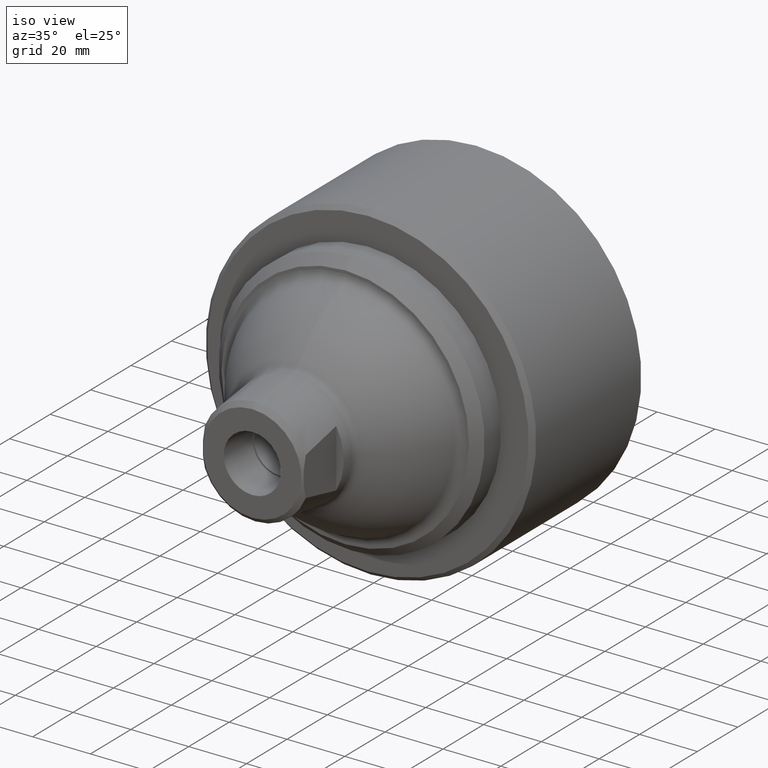
[diagram: clean part render]
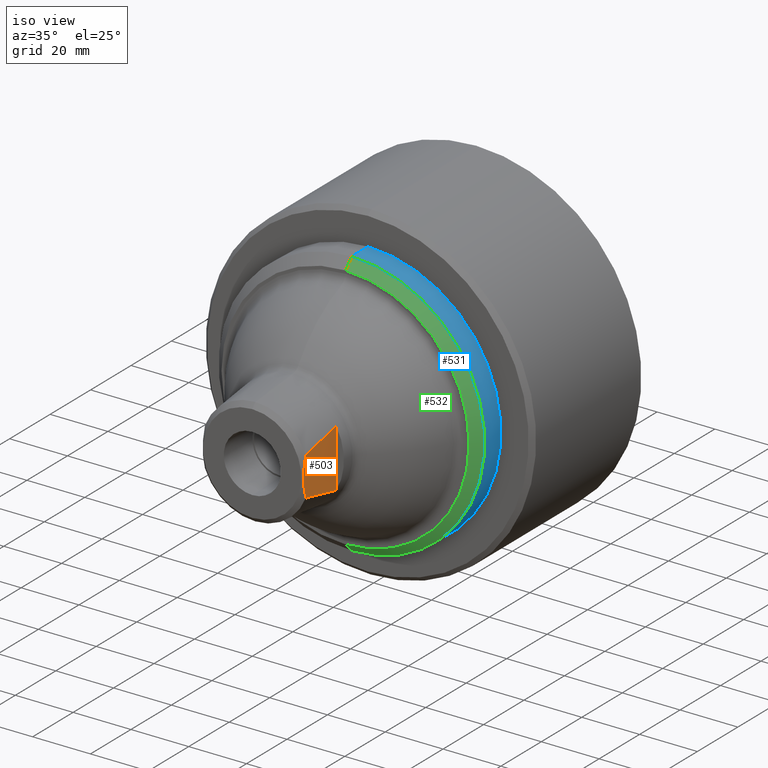
[diagram: same view with three faces highlighted in distinct colors, each labeled with its STEP entity id]
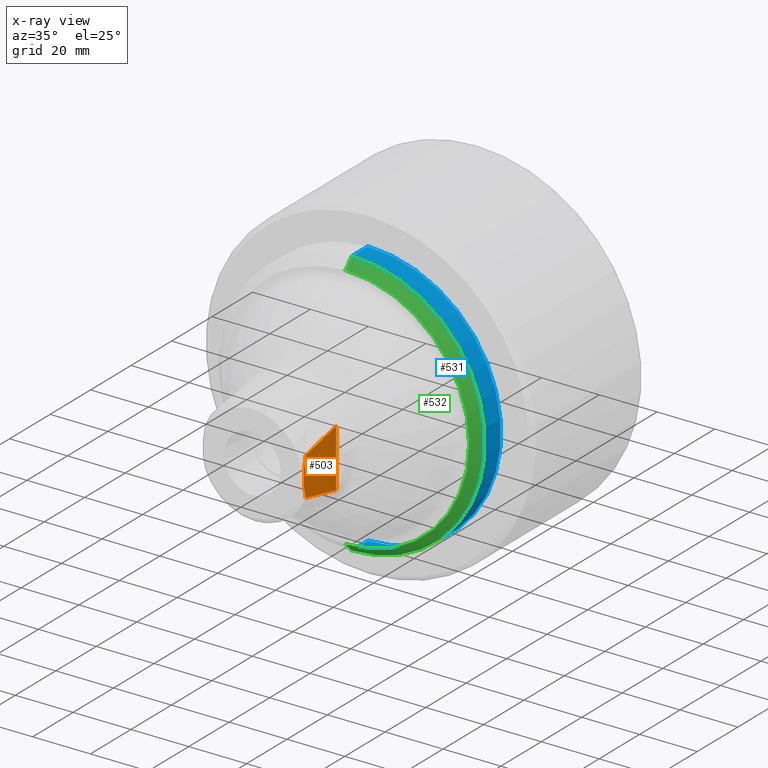
[diagram: x-ray of the same camera — body ghosted, the three highlighted faces saturated]
A machine part, iso view with three faces highlighted in distinct colors.
The next image is the same camera in x-ray (body ghosted, the three faces saturated) — at least one of them is partly hidden behind the body in this view.
Their STEP definitions:

[orange] entity #503 — the highlighted planar face has unit normal (-1, -0, 0).
#231 = VECTOR ( 'NONE', #1791, 39.37007874015748100 ) ;
#449 = EDGE_CURVE ( 'NONE', #2535, #2530, #639, .T. ) ;
#503 = ADVANCED_FACE ( 'NONE', ( #2786 ), #1165, .F. ) ;
#610 = EDGE_CURVE ( 'NONE', #2530, #2533, #1363, .T. ) ;
#639 = B_SPLINE_CURVE_WITH_KNOTS ( 'NONE', 3,
 ( #1023, #1024, #1025, #1026, #1027, #1028 ),
 .UNSPECIFIED., .F., .F.,
 ( 4, 2, 4 ),
 ( 0.01596719644333322000, 0.02367008420088245700, 0.03137297195843169500 ),
 .UNSPECIFIED. ) ;
#724 = AXIS2_PLACEMENT_3D ( 'NONE', #1166, #1167, #1168 ) ;
#833 = EDGE_CURVE ( 'NONE', #2533, #2534, #1369, .T. ) ;
#905 = EDGE_CURVE ( 'NONE', #2534, #2535, #2916, .T. ) ;
#1023 = CARTESIAN_POINT ( 'NONE',  ( 0.6864499999999996700, 0.6520000000000000200, -0.3953677445666993200 ) ) ;
#1024 = CARTESIAN_POINT ( 'NONE',  ( 0.6864499999999995600, 0.5526648028807844600, -0.3763904493901231700 ) ) ;
#1025 = CARTESIAN_POINT ( 'NONE',  ( 0.6864499999999996700, 0.4535402785546300800, -0.3564632163868127800 ) ) ;
#1026 = CARTESIAN_POINT ( 'NONE',  ( 0.6864499999999994500, 0.2559782258720469400, -0.3135110392378371300 ) ) ;
#1027 = CARTESIAN_POINT ( 'NONE',  ( 0.6864499999999996700, 0.1575240353912196200, -0.2905612257343885800 ) ) ;
#1028 = CARTESIAN_POINT ( 'NONE',  ( 0.6864499999999996700, 0.05972910370428787700, -0.2646387698843459800 ) ) ;
#1165 = PLANE ( 'NONE',  #724 ) ;
#1166 = CARTESIAN_POINT ( 'NONE',  ( 0.6864500000000000000, 0.6520000000000000200, 0.4233021562792531600 ) ) ;
#1167 = DIRECTION ( 'NONE',  ( -1.000000000000000000, -0.0000000000000000000, 3.226829763491753000E-016 ) ) ;
#1168 = DIRECTION ( 'NONE',  ( 3.226829763491753000E-016, 0.0000000000000000000, 1.000000000000000000 ) ) ;
#1363 = B_SPLINE_CURVE_WITH_KNOTS ( 'NONE', 3,
 ( #1412, #1413, #1414, #1415, #1416, #1417, #1418, #1419, #1420, #1421 ),
 .UNSPECIFIED., .F., .F.,
 ( 4, 2, 2, 2, 4 ),
 ( 0.01773498663486794800, 0.02453790508743007600, 0.02623863470057060500, 0.02793936431371113800, 0.03134082353999220100 ),
 .UNSPECIFIED. ) ;
#1369 = B_SPLINE_CURVE_WITH_KNOTS ( 'NONE', 3,
 ( #1509, #1510, #1511, #1512, #1513, #1514 ),
 .UNSPECIFIED., .F., .F.,
 ( 4, 2, 4 ),
 ( 0.06147963865417935300, 0.06903875133002547500, 0.07659786400587159600 ),
 .UNSPECIFIED. ) ;
#1412 = CARTESIAN_POINT ( 'NONE',  ( 0.6864499999999996700, 0.05972910370428787700, -0.2646387698843459800 ) ) ;
#1413 = CARTESIAN_POINT ( 'NONE',  ( 0.6864499999999995600, 0.03171308166574994500, -0.1789748685673014600 ) ) ;
#1414 = CARTESIAN_POINT ( 'NONE',  ( 0.6864499999999998900, 0.01500099595552363400, -0.09121716334354730600 ) ) ;
#1415 = CARTESIAN_POINT ( 'NONE',  ( 0.6864499999999998900, 0.01494501470791759600, 0.02233902868637757000 ) ) ;
#1416 = CARTESIAN_POINT ( 'NONE',  ( 0.6864499999999998900, 0.01596859907033181700, 0.04503499646751075300 ) ) ;
#1417 = CARTESIAN_POINT ( 'NONE',  ( 0.6864499999999998900, 0.01995650618603224700, 0.08988338458374767200 ) ) ;
#1418 = CARTESIAN_POINT ( 'NONE',  ( 0.6864499999999998900, 0.02291957046888484800, 0.1121188836507903100 ) ) ;
#1419 = CARTESIAN_POINT ( 'NONE',  ( 0.6864500000000000000, 0.03446432333352256200, 0.1783083182907398400 ) ) ;
#1420 = CARTESIAN_POINT ( 'NONE',  ( 0.6864500000000000000, 0.04570097550896756700, 0.2217453074315339500 ) ) ;
#1421 = CARTESIAN_POINT ( 'NONE',  ( 0.6864500000000000000, 0.05972910370429283800, 0.2646387698843346000 ) ) ;
#1509 = CARTESIAN_POINT ( 'NONE',  ( 0.6864500000000000000, 0.05972910370429283800, 0.2646387698843346000 ) ) ;
#1510 = CARTESIAN_POINT ( 'NONE',  ( 0.6864500000000000000, 0.1573351616461625400, 0.2905111610609637000 ) ) ;
#1511 = CARTESIAN_POINT ( 'NONE',  ( 0.6864500000000001200, 0.2558064863425546500, 0.3134726585834529100 ) ) ;
#1512 = CARTESIAN_POINT ( 'NONE',  ( 0.6864499999999998900, 0.4535270439805836300, 0.3564613806486499600 ) ) ;
#1513 = CARTESIAN_POINT ( 'NONE',  ( 0.6864499999999998900, 0.5526754392431595400, 0.3763924813928189500 ) ) ;
#1514 = CARTESIAN_POINT ( 'NONE',  ( 0.6864500000000000000, 0.6520000000000000200, 0.3953677445666989300 ) ) ;
#1790 = CARTESIAN_POINT ( 'NONE',  ( 0.6864500000000000000, 0.6520000000000000200, 0.4233021562792531600 ) ) ;
#1791 = DIRECTION ( 'NONE',  ( -3.226829763491753000E-016, 0.0000000000000000000, -1.000000000000000000 ) ) ;
#2126 = CARTESIAN_POINT ( 'NONE',  ( 0.6864499999999996700, 0.05972910370428787700, -0.2646387698843459800 ) ) ;
#2129 = CARTESIAN_POINT ( 'NONE',  ( 0.6864500000000000000, 0.05972910370429283800, 0.2646387698843346000 ) ) ;
#2130 = CARTESIAN_POINT ( 'NONE',  ( 0.6864500000000000000, 0.6520000000000000200, 0.3953677445666989300 ) ) ;
#2131 = CARTESIAN_POINT ( 'NONE',  ( 0.6864499999999996700, 0.6520000000000000200, -0.3953677445666993200 ) ) ;
#2404 = ORIENTED_EDGE ( 'NONE', *, *, #905, .F. ) ;
#2407 = ORIENTED_EDGE ( 'NONE', *, *, #449, .F. ) ;
#2408 = ORIENTED_EDGE ( 'NONE', *, *, #833, .F. ) ;
#2409 = ORIENTED_EDGE ( 'NONE', *, *, #610, .F. ) ;
#2530 = VERTEX_POINT ( 'NONE', #2126 ) ;
#2533 = VERTEX_POINT ( 'NONE', #2129 ) ;
#2534 = VERTEX_POINT ( 'NONE', #2130 ) ;
#2535 = VERTEX_POINT ( 'NONE', #2131 ) ;
#2603 = EDGE_LOOP ( 'NONE', ( #2404, #2408, #2409, #2407 ) ) ;
#2786 = FACE_OUTER_BOUND ( 'NONE', #2603, .T. ) ;
#2916 = LINE ( 'NONE', #1790, #231 ) ;

[blue] entity #531 — the highlighted cylindrical surface (partial cylindrical patch) has radius 46.0248 mm, axis along (0, 1, 0).
#505 = EDGE_CURVE ( 'NONE', #2516, #2519, #2790, .T. ) ;
#506 = EDGE_CURVE ( 'NONE', #2519, #2518, #770, .T. ) ;
#507 = EDGE_CURVE ( 'NONE', #2516, #2517, #758, .T. ) ;
#531 = ADVANCED_FACE ( 'NONE', ( #2807 ), #2810, .T. ) ;
#620 = EDGE_CURVE ( 'NONE', #2517, #2518, #2838, .T. ) ;
#757 = AXIS2_PLACEMENT_3D ( 'NONE', #1177, #1178, #1179 ) ;
#758 = CIRCLE ( 'NONE', #757, 1.812000000000000900 ) ;
#761 = AXIS2_PLACEMENT_3D ( 'NONE', #1257, #1258, #1259 ) ;
#765 = VECTOR ( 'NONE', #1173, 39.37007874015748100 ) ;
#766 = AXIS2_PLACEMENT_3D ( 'NONE', #1174, #1175, #1176 ) ;
#770 = CIRCLE ( 'NONE', #766, 1.812000000000000900 ) ;
#1172 = CARTESIAN_POINT ( 'NONE',  ( 3.552713678800500900E-015, 5.125000000000000000, 1.812000000000000900 ) ) ;
#1173 = DIRECTION ( 'NONE',  ( 0.0000000000000000000, 1.000000000000000000, 0.0000000000000000000 ) ) ;
#1174 = CARTESIAN_POINT ( 'NONE',  ( 3.552713678800500900E-015, 2.250000000000000400, 0.0000000000000000000 ) ) ;
#1175 = DIRECTION ( 'NONE',  ( 0.0000000000000000000, 1.000000000000000000, 0.0000000000000000000 ) ) ;
#1176 = DIRECTION ( 'NONE',  ( 0.0000000000000000000, 0.0000000000000000000, 1.000000000000000000 ) ) ;
#1177 = CARTESIAN_POINT ( 'NONE',  ( 3.552713678800500900E-015, 1.935000000000000500, 0.0000000000000000000 ) ) ;
#1178 = DIRECTION ( 'NONE',  ( 0.0000000000000000000, 1.000000000000000000, 0.0000000000000000000 ) ) ;
#1179 = DIRECTION ( 'NONE',  ( 0.0000000000000000000, 0.0000000000000000000, 1.000000000000000000 ) ) ;
#1257 = CARTESIAN_POINT ( 'NONE',  ( 3.552713678800500900E-015, 5.125000000000000000, 0.0000000000000000000 ) ) ;
#1258 = DIRECTION ( 'NONE',  ( 0.0000000000000000000, 1.000000000000000000, 0.0000000000000000000 ) ) ;
#1259 = DIRECTION ( 'NONE',  ( 0.0000000000000000000, 0.0000000000000000000, 1.000000000000000000 ) ) ;
#1481 = CARTESIAN_POINT ( 'NONE',  ( 3.774619678806001300E-015, 5.125000000000000000, -1.812000000000000900 ) ) ;
#1482 = DIRECTION ( 'NONE',  ( 0.0000000000000000000, 1.000000000000000000, 0.0000000000000000000 ) ) ;
#2112 = CARTESIAN_POINT ( 'NONE',  ( 3.552713678800500900E-015, 1.935000000000000500, 1.812000000000000900 ) ) ;
#2113 = CARTESIAN_POINT ( 'NONE',  ( 3.774619678806002100E-015, 1.935000000000000500, -1.812000000000000900 ) ) ;
#2114 = CARTESIAN_POINT ( 'NONE',  ( 3.774619678806001300E-015, 2.250000000000000400, -1.812000000000000900 ) ) ;
#2115 = CARTESIAN_POINT ( 'NONE',  ( 3.552713678800500900E-015, 2.250000000000000400, 1.812000000000000900 ) ) ;
#2249 = EDGE_LOOP ( 'NONE', ( #2467, #2465, #2466, #2464 ) ) ;
#2464 = ORIENTED_EDGE ( 'NONE', *, *, #505, .F. ) ;
#2465 = ORIENTED_EDGE ( 'NONE', *, *, #620, .T. ) ;
#2466 = ORIENTED_EDGE ( 'NONE', *, *, #506, .F. ) ;
#2467 = ORIENTED_EDGE ( 'NONE', *, *, #507, .T. ) ;
#2516 = VERTEX_POINT ( 'NONE', #2112 ) ;
#2517 = VERTEX_POINT ( 'NONE', #2113 ) ;
#2518 = VERTEX_POINT ( 'NONE', #2114 ) ;
#2519 = VERTEX_POINT ( 'NONE', #2115 ) ;
#2790 = LINE ( 'NONE', #1172, #765 ) ;
#2807 = FACE_OUTER_BOUND ( 'NONE', #2249, .T. ) ;
#2810 = CYLINDRICAL_SURFACE ( 'NONE', #761, 1.812000000000000900 ) ;
#2838 = LINE ( 'NONE', #1481, #2966 ) ;
#2966 = VECTOR ( 'NONE', #1482, 39.37007874015748100 ) ;

[green] entity #532 — the highlighted conical surface has half-angle 45 deg.
#504 = EDGE_CURVE ( 'NONE', #2520, #2521, #750, .T. ) ;
#507 = EDGE_CURVE ( 'NONE', #2516, #2517, #758, .T. ) ;
#523 = EDGE_CURVE ( 'NONE', #2520, #2516, #2794, .T. ) ;
#532 = ADVANCED_FACE ( 'NONE', ( #2811 ), #781, .T. ) ;
#622 = EDGE_CURVE ( 'NONE', #2521, #2517, #2839, .T. ) ;
#750 = CIRCLE ( 'NONE', #773, 1.687000000000001200 ) ;
#757 = AXIS2_PLACEMENT_3D ( 'NONE', #1177, #1178, #1179 ) ;
#758 = CIRCLE ( 'NONE', #757, 1.812000000000000900 ) ;
#773 = AXIS2_PLACEMENT_3D ( 'NONE', #1169, #1170, #1171 ) ;
#781 = CONICAL_SURFACE ( 'NONE', #796, 1.687000000000001200, 0.7853981633974482800 ) ;
#793 = VECTOR ( 'NONE', #1211, 39.37007874015748100 ) ;
#796 = AXIS2_PLACEMENT_3D ( 'NONE', #1268, #1269, #1270 ) ;
#1169 = CARTESIAN_POINT ( 'NONE',  ( 3.552713678800500900E-015, 1.810000000000000700, 0.0000000000000000000 ) ) ;
#1170 = DIRECTION ( 'NONE',  ( 0.0000000000000000000, 1.000000000000000000, 0.0000000000000000000 ) ) ;
#1171 = DIRECTION ( 'NONE',  ( 0.0000000000000000000, 0.0000000000000000000, 1.000000000000000000 ) ) ;
#1177 = CARTESIAN_POINT ( 'NONE',  ( 3.552713678800500900E-015, 1.935000000000000500, 0.0000000000000000000 ) ) ;
#1178 = DIRECTION ( 'NONE',  ( 0.0000000000000000000, 1.000000000000000000, 0.0000000000000000000 ) ) ;
#1179 = DIRECTION ( 'NONE',  ( 0.0000000000000000000, 0.0000000000000000000, 1.000000000000000000 ) ) ;
#1210 = CARTESIAN_POINT ( 'NONE',  ( 3.552713678800500900E-015, 1.810000000000000700, 1.687000000000001200 ) ) ;
#1211 = DIRECTION ( 'NONE',  ( 0.0000000000000000000, 0.7071067811865475700, 0.7071067811865474600 ) ) ;
#1268 = CARTESIAN_POINT ( 'NONE',  ( 3.552713678800500900E-015, 1.810000000000000700, 0.0000000000000000000 ) ) ;
#1269 = DIRECTION ( 'NONE',  ( 0.0000000000000000000, 1.000000000000000000, 0.0000000000000000000 ) ) ;
#1270 = DIRECTION ( 'NONE',  ( 0.0000000000000000000, 0.0000000000000000000, 1.000000000000000000 ) ) ;
#1483 = CARTESIAN_POINT ( 'NONE',  ( 3.759311593816659400E-015, 1.810000000000000700, -1.687000000000001200 ) ) ;
#1484 = DIRECTION ( 'NONE',  ( 8.659560562354931600E-017, 0.7071067811865475700, -0.7071067811865474600 ) ) ;
#2112 = CARTESIAN_POINT ( 'NONE',  ( 3.552713678800500900E-015, 1.935000000000000500, 1.812000000000000900 ) ) ;
#2113 = CARTESIAN_POINT ( 'NONE',  ( 3.774619678806002100E-015, 1.935000000000000500, -1.812000000000000900 ) ) ;
#2116 = CARTESIAN_POINT ( 'NONE',  ( 3.552713678800500900E-015, 1.810000000000000700, 1.687000000000001200 ) ) ;
#2117 = CARTESIAN_POINT ( 'NONE',  ( 3.766965636311330300E-015, 1.810000000000000700, -1.687000000000001200 ) ) ;
#2248 = EDGE_LOOP ( 'NONE', ( #2463, #2460, #2462, #2486 ) ) ;
#2460 = ORIENTED_EDGE ( 'NONE', *, *, #622, .T. ) ;
#2462 = ORIENTED_EDGE ( 'NONE', *, *, #507, .F. ) ;
#2463 = ORIENTED_EDGE ( 'NONE', *, *, #504, .T. ) ;
#2486 = ORIENTED_EDGE ( 'NONE', *, *, #523, .F. ) ;
#2516 = VERTEX_POINT ( 'NONE', #2112 ) ;
#2517 = VERTEX_POINT ( 'NONE', #2113 ) ;
#2520 = VERTEX_POINT ( 'NONE', #2116 ) ;
#2521 = VERTEX_POINT ( 'NONE', #2117 ) ;
#2794 = LINE ( 'NONE', #1210, #793 ) ;
#2811 = FACE_OUTER_BOUND ( 'NONE', #2248, .T. ) ;
#2839 = LINE ( 'NONE', #1483, #2968 ) ;
#2968 = VECTOR ( 'NONE', #1484, 39.37007874015748100 ) ;